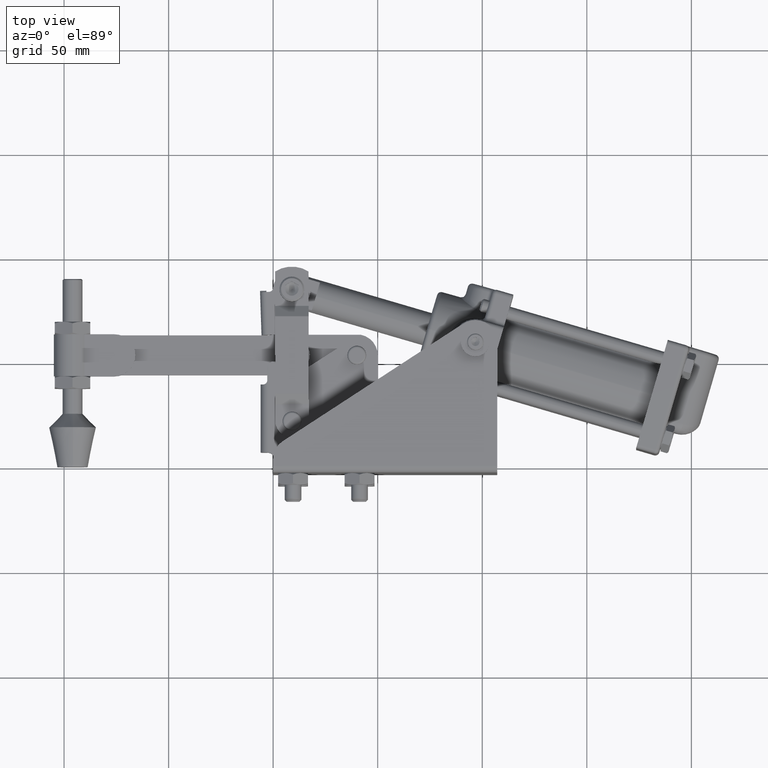
[diagram: clean part render]
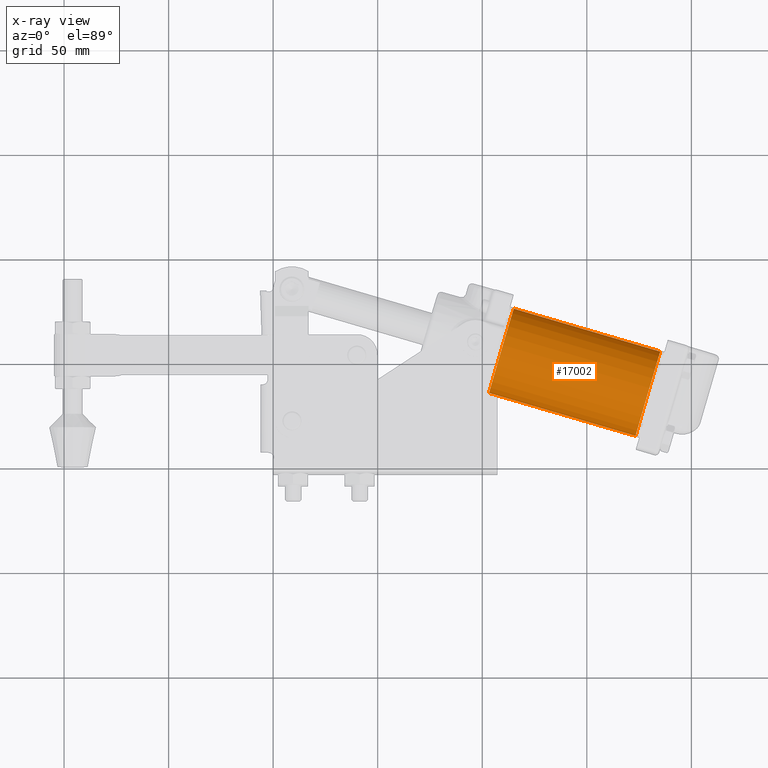
[diagram: x-ray — body ghosted, one internal face saturated and labeled with its STEP entity id]
A machine part, top view, then the same camera in x-ray: the body is ghosted and one INTERNAL B-rep face — a face not visible from any outside direction — is saturated and labeled: STEP entity #17002.
In plain terms, the highlighted cylindrical surface (partial cylindrical patch) has radius 21 mm, axis along (-0.9597, 0.281, 0).
Its self-contained STEP definition (entity closure, byte-faithful):
#211 = CIRCLE ( 'NONE', #22794, 20.99999999999999600 ) ;
#870 = DIRECTION ( 'NONE',  ( 0.2810313140745088200, 0.9596985987848241100, 0.0000000000000000000 ) ) ;
#1266 = FACE_OUTER_BOUND ( 'NONE', #19359, .T. ) ;
#1500 = ORIENTED_EDGE ( 'NONE', *, *, #26569, .F. ) ;
#1941 = DIRECTION ( 'NONE',  ( -0.9596985987848241100, 0.2810313140745088800, 2.000102180355121700E-016 ) ) ;
#2091 = VECTOR ( 'NONE', #10503, 1000.000000000000000 ) ;
#3716 = VERTEX_POINT ( 'NONE', #8170 ) ;
#4088 = DIRECTION ( 'NONE',  ( -0.9596985987848241100, 0.2810313140745088800, 2.000102180355121700E-016 ) ) ;
#4922 = EDGE_CURVE ( 'NONE', #10838, #9839, #21215, .T. ) ;
#5421 = LINE ( 'NONE', #31684, #24660 ) ;
#6197 = EDGE_CURVE ( 'NONE', #9839, #3716, #8780, .T. ) ;
#6981 = DIRECTION ( 'NONE',  ( -0.2810313140745088800, -0.9596985987848241100, 0.0000000000000000000 ) ) ;
#7125 = CYLINDRICAL_SURFACE ( 'NONE', #29372, 20.99999999999999600 ) ;
#7860 = CARTESIAN_POINT ( 'NONE',  ( 182.2550076135619600, -2.276834637297640000, -2.734299997528128600E-014 ) ) ;
#8170 = CARTESIAN_POINT ( 'NONE',  ( 53.27442418863802900, 35.49292234255007400, -4.622327783389769500E-016 ) ) ;
#8331 = DIRECTION ( 'NONE',  ( 0.9596985987848242200, -0.2810313140745089300, -2.000102180355122200E-016 ) ) ;
#8780 = LINE ( 'NONE', #7860, #2091 ) ;
#9503 = CARTESIAN_POINT ( 'NONE',  ( 188.1566652091266300, 17.87683593718366400, -2.734299997528128600E-014 ) ) ;
#9839 = VERTEX_POINT ( 'NONE', #13468 ) ;
#10503 = DIRECTION ( 'NONE',  ( -0.9596985987848241100, 0.2810313140745088800, 2.000102180355121700E-016 ) ) ;
#10838 = VERTEX_POINT ( 'NONE', #24530 ) ;
#11921 = CARTESIAN_POINT ( 'NONE',  ( 65.07773937976743600, 75.80026349151266600, 2.109525499870459000E-015 ) ) ;
#13468 = CARTESIAN_POINT ( 'NONE',  ( 123.3324218999301800, 14.97763641511093800, -1.506297869493136200E-014 ) ) ;
#15861 = DIRECTION ( 'NONE',  ( 0.9596985987848241100, -0.2810313140745087600, -2.000102180355001100E-016 ) ) ;
#17002 = ADVANCED_FACE ( 'NONE', ( #1266 ), #7125, .F. ) ;
#19359 = EDGE_LOOP ( 'NONE', ( #1500, #25119, #29241, #24440 ) ) ;
#20663 = AXIS2_PLACEMENT_3D ( 'NONE', #30962, #15861, #870 ) ;
#21215 = CIRCLE ( 'NONE', #20663, 21.00000000000000000 ) ;
#22794 = AXIS2_PLACEMENT_3D ( 'NONE', #23351, #8331, #25903 ) ;
#23351 = CARTESIAN_POINT ( 'NONE',  ( 59.17608178420271500, 55.64659291703138400, -4.622327783389769500E-016 ) ) ;
#24208 = VERTEX_POINT ( 'NONE', #11921 ) ;
#24440 = ORIENTED_EDGE ( 'NONE', *, *, #27211, .F. ) ;
#24530 = CARTESIAN_POINT ( 'NONE',  ( 135.1357370910595500, 55.28497756407353600, -1.249122041672192000E-014 ) ) ;
#24660 = VECTOR ( 'NONE', #4088, 1000.000000000000000 ) ;
#25119 = ORIENTED_EDGE ( 'NONE', *, *, #4922, .T. ) ;
#25903 = DIRECTION ( 'NONE',  ( 0.2810313140745092100, 0.9596985987848240000, 0.0000000000000000000 ) ) ;
#26569 = EDGE_CURVE ( 'NONE', #10838, #24208, #5421, .T. ) ;
#27211 = EDGE_CURVE ( 'NONE', #24208, #3716, #211, .T. ) ;
#29241 = ORIENTED_EDGE ( 'NONE', *, *, #6197, .T. ) ;
#29372 = AXIS2_PLACEMENT_3D ( 'NONE', #9503, #1941, #6981 ) ;
#30962 = CARTESIAN_POINT ( 'NONE',  ( 129.2340794954948800, 35.13130698959224000, -1.506297869493136200E-014 ) ) ;
#31684 = CARTESIAN_POINT ( 'NONE',  ( 194.0583228046913300, 38.03050651166496700, -2.477124169707184500E-014 ) ) ;